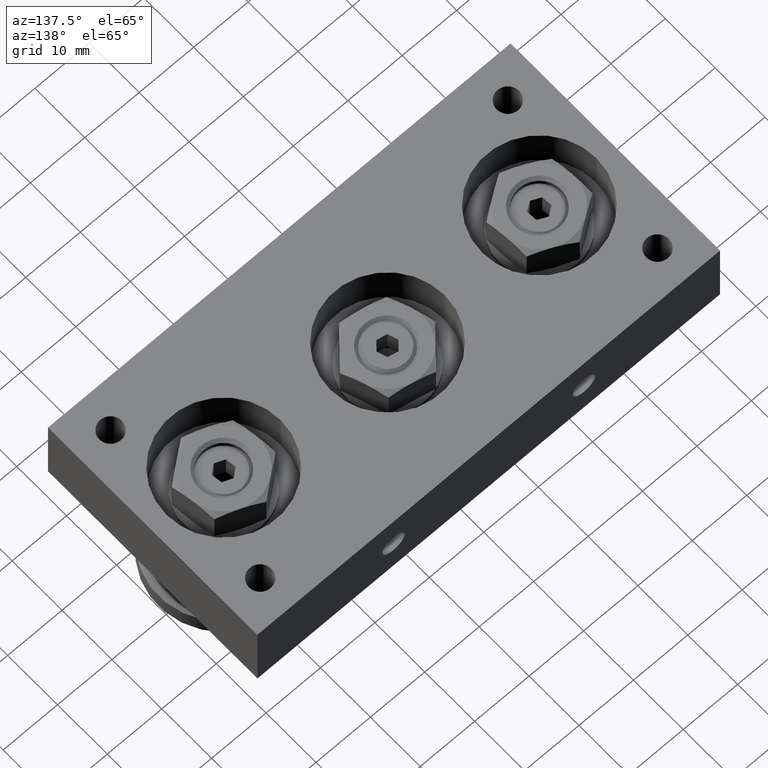
[diagram: clean part render]
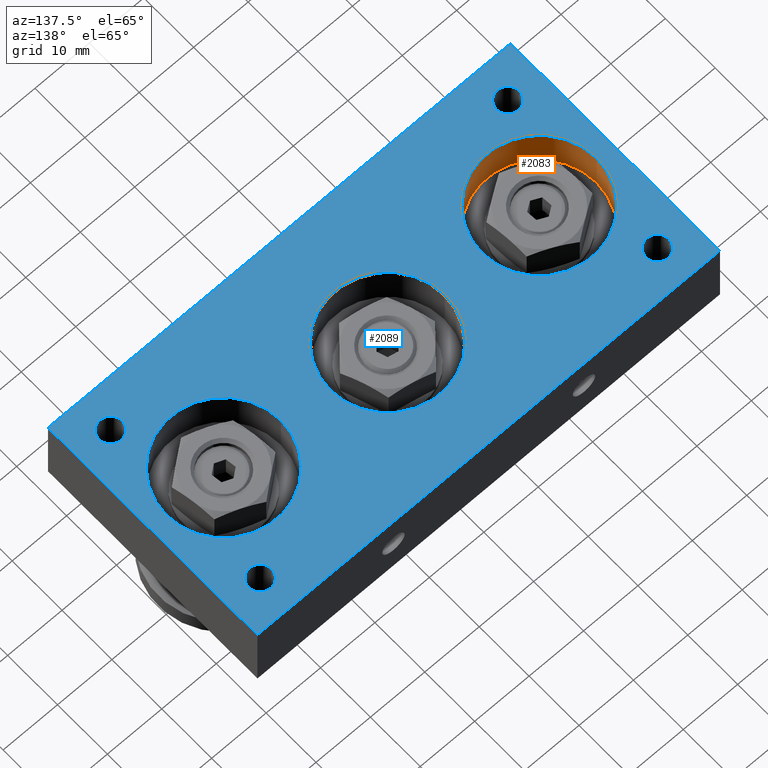
[diagram: same view with the hole feature highlighted: cylindrical wall and planar end face, labeled with their STEP entity ids]
A machine part, auxiliary view. The highlighted faces form one hole feature of diameter 21 mm: the cylindrical wall (entity #2083, orange) and its adjacent planar end face (entity #2089, blue) — they share a circular edge in the B-rep.
Wall:
#249=CYLINDRICAL_SURFACE('',#2452,10.5);
#302=FACE_OUTER_BOUND('',#439,.T.);
#439=EDGE_LOOP('',(#1518,#1519,#1520,#1521));
#606=LINE('',#3482,#742);
#742=VECTOR('',#2792,10.5);
#886=CIRCLE('',#2450,10.5);
#888=CIRCLE('',#2453,10.5);
#1015=VERTEX_POINT('',#3475);
#1017=VERTEX_POINT('',#3480);
#1211=EDGE_CURVE('',#1015,#1015,#886,.T.);
#1213=EDGE_CURVE('',#1017,#1017,#888,.T.);
#1214=EDGE_CURVE('',#1017,#1015,#606,.T.);
#1518=ORIENTED_EDGE('',*,*,#1213,.F.);
#1519=ORIENTED_EDGE('',*,*,#1214,.T.);
#1520=ORIENTED_EDGE('',*,*,#1211,.F.);
#1521=ORIENTED_EDGE('',*,*,#1214,.F.);
#2083=ADVANCED_FACE('',(#302),#249,.F.);
#2450=AXIS2_PLACEMENT_3D('',#3476,#2784,#2785);
#2452=AXIS2_PLACEMENT_3D('',#3479,#2788,#2789);
#2453=AXIS2_PLACEMENT_3D('',#3481,#2790,#2791);
#2784=DIRECTION('center_axis',(0.,0.,1.));
#2785=DIRECTION('ref_axis',(1.,0.,0.));
#2788=DIRECTION('center_axis',(0.,0.,1.));
#2789=DIRECTION('ref_axis',(1.,0.,0.));
#2790=DIRECTION('center_axis',(0.,0.,-1.));
#2791=DIRECTION('ref_axis',(1.,0.,0.));
#2792=DIRECTION('',(0.,0.,-1.));
#3475=CARTESIAN_POINT('',(-39.5,-0.500000000000004,6.2));
#3476=CARTESIAN_POINT('Origin',(-29.,-0.500000000000003,6.2));
#3479=CARTESIAN_POINT('Origin',(-29.,-0.500000000000003,10.1));
#3480=CARTESIAN_POINT('',(-39.5,-0.500000000000004,14.));
#3481=CARTESIAN_POINT('Origin',(-29.,-0.500000000000003,14.));
#3482=CARTESIAN_POINT('',(-39.5,-0.500000000000004,10.1));
End face:
#148=FACE_BOUND('',#448,.T.);
#149=FACE_BOUND('',#449,.T.);
#150=FACE_BOUND('',#450,.T.);
#151=FACE_BOUND('',#451,.T.);
#152=FACE_BOUND('',#452,.T.);
#153=FACE_BOUND('',#453,.T.);
#154=FACE_BOUND('',#454,.T.);
#189=PLANE('',#2460);
#308=FACE_OUTER_BOUND('',#447,.T.);
#447=EDGE_LOOP('',(#1544,#1545,#1546,#1547));
#448=EDGE_LOOP('',(#1548));
#449=EDGE_LOOP('',(#1549));
#450=EDGE_LOOP('',(#1550));
#451=EDGE_LOOP('',(#1551));
#452=EDGE_LOOP('',(#1552));
#453=EDGE_LOOP('',(#1553));
#454=EDGE_LOOP('',(#1554));
#608=LINE('',#3490,#744);
#612=LINE('',#3498,#748);
#615=LINE('',#3504,#751);
#618=LINE('',#3509,#754);
#744=VECTOR('',#2800,10.);
#748=VECTOR('',#2806,10.);
#751=VECTOR('',#2811,10.);
#754=VECTOR('',#2816,10.);
#870=CIRCLE('',#2424,2.067);
#872=CIRCLE('',#2427,2.067);
#874=CIRCLE('',#2430,2.067);
#876=CIRCLE('',#2433,2.067);
#880=CIRCLE('',#2439,10.5);
#884=CIRCLE('',#2446,10.5);
#888=CIRCLE('',#2453,10.5);
#999=VERTEX_POINT('',#3425);
#1001=VERTEX_POINT('',#3431);
#1003=VERTEX_POINT('',#3437);
#1005=VERTEX_POINT('',#3443);
#1009=VERTEX_POINT('',#3454);
#1013=VERTEX_POINT('',#3467);
#1017=VERTEX_POINT('',#3480);
#1019=VERTEX_POINT('',#3488);
#1020=VERTEX_POINT('',#3489);
#1023=VERTEX_POINT('',#3497);
#1025=VERTEX_POINT('',#3503);
#1187=EDGE_CURVE('',#999,#999,#870,.T.);
#1190=EDGE_CURVE('',#1001,#1001,#872,.T.);
#1193=EDGE_CURVE('',#1003,#1003,#874,.T.);
#1196=EDGE_CURVE('',#1005,#1005,#876,.T.);
#1201=EDGE_CURVE('',#1009,#1009,#880,.T.);
#1207=EDGE_CURVE('',#1013,#1013,#884,.T.);
#1213=EDGE_CURVE('',#1017,#1017,#888,.T.);
#1217=EDGE_CURVE('',#1019,#1020,#608,.T.);
#1221=EDGE_CURVE('',#1020,#1023,#612,.T.);
#1224=EDGE_CURVE('',#1023,#1025,#615,.T.);
#1227=EDGE_CURVE('',#1025,#1019,#618,.T.);
#1544=ORIENTED_EDGE('',*,*,#1217,.F.);
#1545=ORIENTED_EDGE('',*,*,#1227,.F.);
#1546=ORIENTED_EDGE('',*,*,#1224,.F.);
#1547=ORIENTED_EDGE('',*,*,#1221,.F.);
#1548=ORIENTED_EDGE('',*,*,#1187,.T.);
#1549=ORIENTED_EDGE('',*,*,#1190,.T.);
#1550=ORIENTED_EDGE('',*,*,#1193,.T.);
#1551=ORIENTED_EDGE('',*,*,#1196,.T.);
#1552=ORIENTED_EDGE('',*,*,#1201,.T.);
#1553=ORIENTED_EDGE('',*,*,#1207,.T.);
#1554=ORIENTED_EDGE('',*,*,#1213,.T.);
#2089=ADVANCED_FACE('',(#308,#148,#149,#150,#151,#152,#153,#154),#189,.T.);
#2424=AXIS2_PLACEMENT_3D('',#3426,#2724,#2725);
#2427=AXIS2_PLACEMENT_3D('',#3432,#2731,#2732);
#2430=AXIS2_PLACEMENT_3D('',#3438,#2738,#2739);
#2433=AXIS2_PLACEMENT_3D('',#3444,#2745,#2746);
#2439=AXIS2_PLACEMENT_3D('',#3455,#2758,#2759);
#2446=AXIS2_PLACEMENT_3D('',#3468,#2774,#2775);
#2453=AXIS2_PLACEMENT_3D('',#3481,#2790,#2791);
#2460=AXIS2_PLACEMENT_3D('',#3511,#2818,#2819);
#2724=DIRECTION('center_axis',(0.,0.,-1.));
#2725=DIRECTION('ref_axis',(1.,0.,0.));
#2731=DIRECTION('center_axis',(0.,0.,-1.));
#2732=DIRECTION('ref_axis',(1.,0.,0.));
#2738=DIRECTION('center_axis',(0.,0.,-1.));
#2739=DIRECTION('ref_axis',(1.,0.,0.));
#2745=DIRECTION('center_axis',(0.,0.,-1.));
#2746=DIRECTION('ref_axis',(1.,0.,0.));
#2758=DIRECTION('center_axis',(0.,0.,-1.));
#2759=DIRECTION('ref_axis',(1.,0.,0.));
#2774=DIRECTION('center_axis',(0.,0.,-1.));
#2775=DIRECTION('ref_axis',(1.,0.,0.));
#2790=DIRECTION('center_axis',(0.,0.,-1.));
#2791=DIRECTION('ref_axis',(1.,0.,0.));
#2800=DIRECTION('',(0.,-1.,0.));
#2806=DIRECTION('',(-1.,0.,0.));
#2811=DIRECTION('',(0.,1.,0.));
#2816=DIRECTION('',(1.,0.,0.));
#2818=DIRECTION('center_axis',(0.,0.,1.));
#2819=DIRECTION('ref_axis',(1.,0.,0.));
#3425=CARTESIAN_POINT('',(34.433,15.,14.));
#3426=CARTESIAN_POINT('Origin',(36.5,15.,14.));
#3431=CARTESIAN_POINT('',(34.433,-15.,14.));
#3432=CARTESIAN_POINT('Origin',(36.5,-15.,14.));
#3437=CARTESIAN_POINT('',(-38.567,-15.,14.));
#3438=CARTESIAN_POINT('Origin',(-36.5,-15.,14.));
#3443=CARTESIAN_POINT('',(-38.567,15.,14.));
#3444=CARTESIAN_POINT('Origin',(-36.5,15.,14.));
#3454=CARTESIAN_POINT('',(-10.5,0.699999999999993,14.));
#3455=CARTESIAN_POINT('Origin',(0.,0.699999999999994,14.));
#3467=CARTESIAN_POINT('',(18.5,-0.500000000000004,14.));
#3468=CARTESIAN_POINT('Origin',(29.,-0.500000000000003,14.));
#3480=CARTESIAN_POINT('',(-39.5,-0.500000000000004,14.));
#3481=CARTESIAN_POINT('Origin',(-29.,-0.500000000000003,14.));
#3488=CARTESIAN_POINT('',(42.5,21.,14.));
#3489=CARTESIAN_POINT('',(42.5,-21.,14.));
#3490=CARTESIAN_POINT('',(42.5,21.,14.));
#3497=CARTESIAN_POINT('',(-42.5,-21.,14.));
#3498=CARTESIAN_POINT('',(42.5,-21.,14.));
#3503=CARTESIAN_POINT('',(-42.5,21.,14.));
#3504=CARTESIAN_POINT('',(-42.5,-21.,14.));
#3509=CARTESIAN_POINT('',(-42.5,21.,14.));
#3511=CARTESIAN_POINT('Origin',(0.,0.,14.));